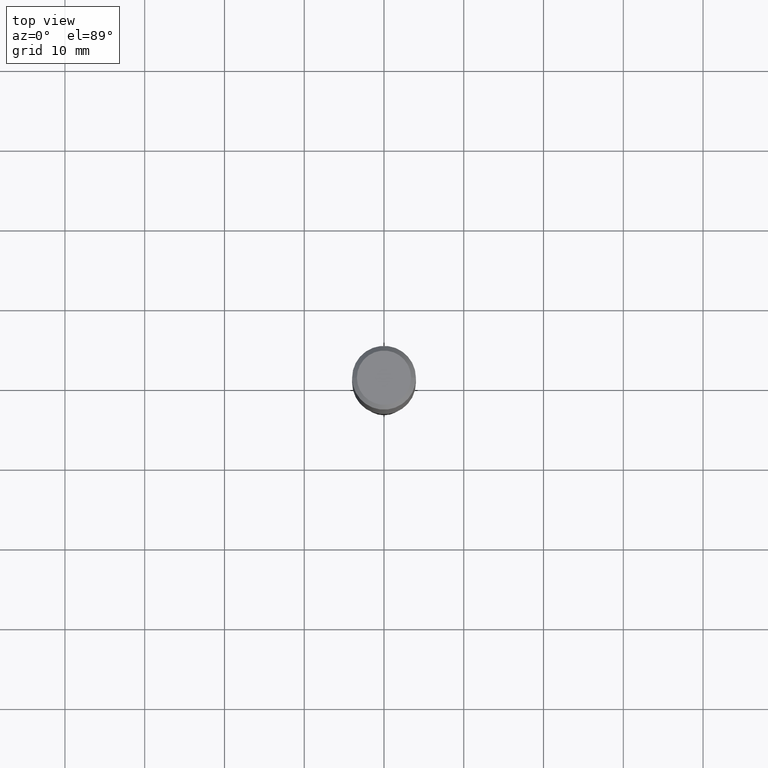
[diagram: clean part render]
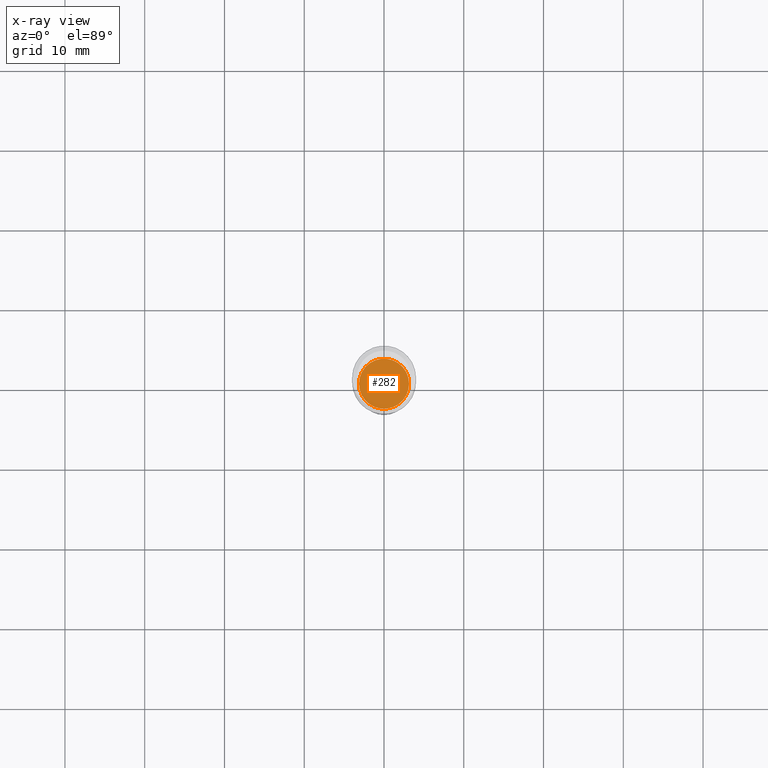
[diagram: x-ray — body ghosted, one internal face saturated and labeled with its STEP entity id]
A machine part, top view, then the same camera in x-ray: the body is ghosted and one INTERNAL B-rep face — a face not visible from any outside direction — is saturated and labeled: STEP entity #282.
In plain terms, the highlighted planar face has unit normal (-0, 0, 1).
Its self-contained STEP definition (entity closure, byte-faithful):
#5 = PLANE ( 'NONE',  #53 ) ;
#40 = DIRECTION ( 'NONE',  ( -2.438088387897960049E-29, 3.491481338843145188E-15, 1.000000000000000000 ) ) ;
#48 = ORIENTED_EDGE ( 'NONE', *, *, #104, .F. ) ;
#51 = VERTEX_POINT ( 'NONE', #56 ) ;
#53 = AXIS2_PLACEMENT_3D ( 'NONE', #108, #40, #266 ) ;
#56 = CARTESIAN_POINT ( 'NONE',  ( -0.1234999999999999987, -5.209323097238496402E-15, -1.744100000000000206 ) ) ;
#68 = AXIS2_PLACEMENT_3D ( 'NONE', #458, #489, #310 ) ;
#104 = EDGE_CURVE ( 'NONE', #462, #51, #239, .T. ) ;
#107 = AXIS2_PLACEMENT_3D ( 'NONE', #483, #481, #136 ) ;
#108 = CARTESIAN_POINT ( 'NONE',  ( 4.265142144867497014E-29, -6.089492603076330929E-15, -1.744100000000000206 ) ) ;
#136 = DIRECTION ( 'NONE',  ( 1.000000000000000000, -6.982962677686265922E-15, 0.000000000000000000 ) ) ;
#159 = ORIENTED_EDGE ( 'NONE', *, *, #372, .F. ) ;
#239 = CIRCLE ( 'NONE', #68, 0.1234999999999999987 ) ;
#266 = DIRECTION ( 'NONE',  ( 1.000000000000000000, -6.982962677686265922E-15, 4.876176775795935793E-29 ) ) ;
#282 = ADVANCED_FACE ( 'NONE', ( #454 ), #5, .F. ) ;
#310 = DIRECTION ( 'NONE',  ( 1.000000000000000000, -6.982962677686265922E-15, 0.000000000000000000 ) ) ;
#372 = EDGE_CURVE ( 'NONE', #51, #462, #470, .T. ) ;
#377 = CARTESIAN_POINT ( 'NONE',  ( 0.1234999999999999987, -6.951888493770584457E-15, -1.744100000000000206 ) ) ;
#441 = EDGE_LOOP ( 'NONE', ( #48, #159 ) ) ;
#454 = FACE_OUTER_BOUND ( 'NONE', #441, .T. ) ;
#458 = CARTESIAN_POINT ( 'NONE',  ( 4.265142144867497014E-29, -6.089492603076330929E-15, -1.744100000000000206 ) ) ;
#462 = VERTEX_POINT ( 'NONE', #377 ) ;
#470 = CIRCLE ( 'NONE', #107, 0.1234999999999999987 ) ;
#481 = DIRECTION ( 'NONE',  ( -2.445468806185136597E-29, 3.491481338843145583E-15, 1.000000000000000000 ) ) ;
#483 = CARTESIAN_POINT ( 'NONE',  ( 4.265142144867497014E-29, -6.089492603076330929E-15, -1.744100000000000206 ) ) ;
#489 = DIRECTION ( 'NONE',  ( -2.445468806185136597E-29, 3.491481338843145583E-15, 1.000000000000000000 ) ) ;